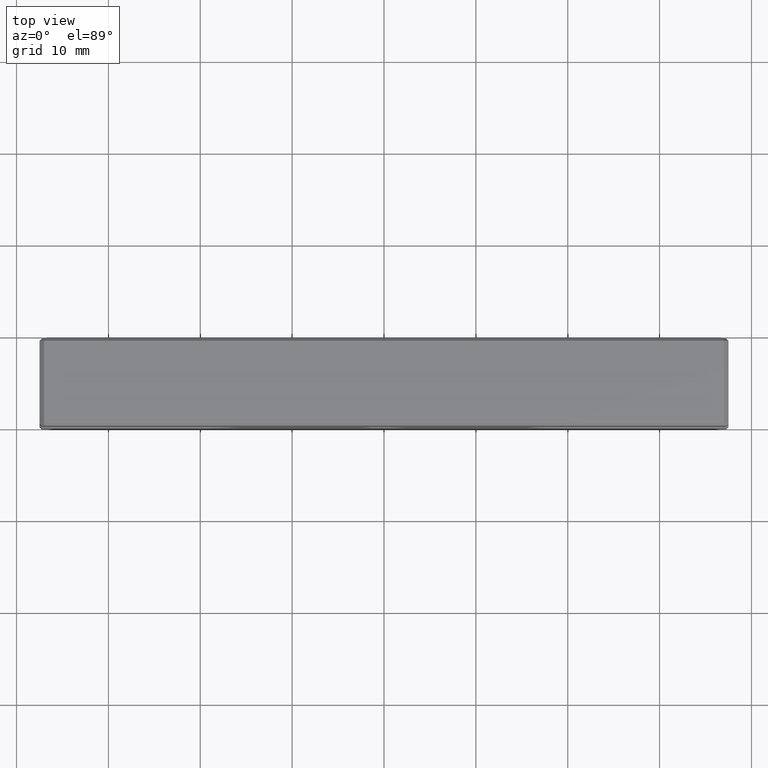
[diagram: clean part render]
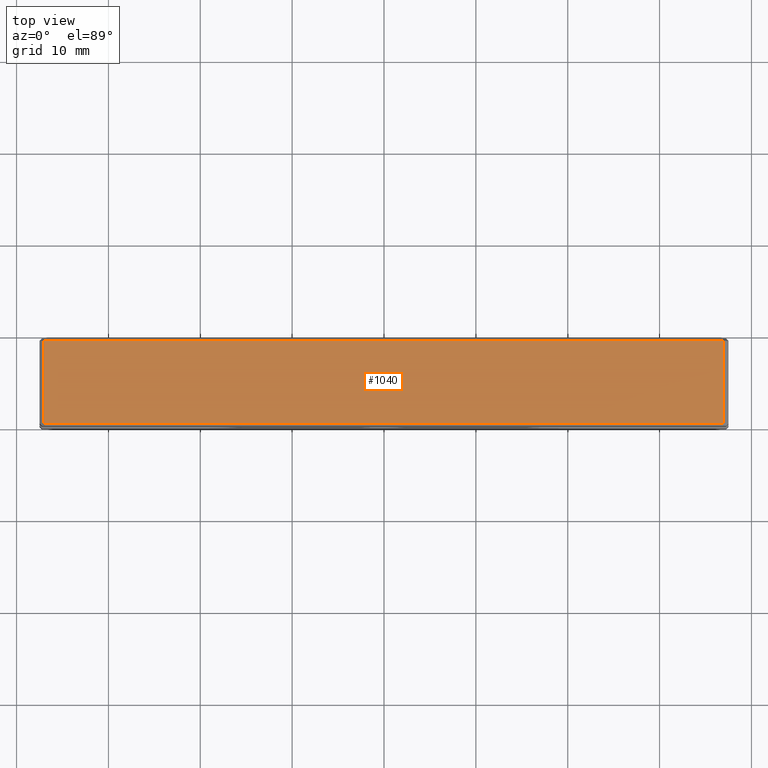
[diagram: same view with one face highlighted and labeled with its STEP entity id]
A machine part, top view. The second image highlights one B-rep face of the part: STEP entity #1040.
In plain terms, the highlighted planar face has unit normal (0, 0, -1).
Its self-contained STEP definition (entity closure, byte-faithful):
#18 = ORIENTED_EDGE ( 'NONE', *, *, #469, .T. ) ;
#29 = EDGE_CURVE ( 'NONE', #230, #90, #597, .T. ) ;
#38 = CARTESIAN_POINT ( 'NONE',  ( -36.99999999999999289, 9.250000000000000000, 12.49999999999999822 ) ) ;
#61 = CARTESIAN_POINT ( 'NONE',  ( -36.99999999999999289, 0.2500000000000071609, 12.49999999999999822 ) ) ;
#77 = DIRECTION ( 'NONE',  ( 0.000000000000000000, 0.000000000000000000, -1.000000000000000000 ) ) ;
#84 = PLANE ( 'NONE',  #1058 ) ;
#90 = VERTEX_POINT ( 'NONE', #38 ) ;
#194 = FACE_OUTER_BOUND ( 'NONE', #358, .T. ) ;
#216 = DIRECTION ( 'NONE',  ( 1.000000000000000000, 0.000000000000000000, 0.000000000000000000 ) ) ;
#230 = VERTEX_POINT ( 'NONE', #721 ) ;
#253 = LINE ( 'NONE', #323, #530 ) ;
#270 = DIRECTION ( 'NONE',  ( -1.000000000000000000, 0.000000000000000000, -0.000000000000000000 ) ) ;
#293 = EDGE_CURVE ( 'NONE', #90, #873, #1122, .T. ) ;
#323 = CARTESIAN_POINT ( 'NONE',  ( 36.99999999999999289, 9.500000000000000000, 12.49999999999999822 ) ) ;
#352 = ORIENTED_EDGE ( 'NONE', *, *, #293, .T. ) ;
#358 = EDGE_LOOP ( 'NONE', ( #352, #944, #18, #926 ) ) ;
#469 = EDGE_CURVE ( 'NONE', #678, #230, #253, .T. ) ;
#518 = CARTESIAN_POINT ( 'NONE',  ( -36.99999999999999289, 9.250000000000000000, 12.49999999999999822 ) ) ;
#530 = VECTOR ( 'NONE', #1068, 1000.000000000000000 ) ;
#542 = VECTOR ( 'NONE', #980, 1000.000000000000000 ) ;
#556 = CARTESIAN_POINT ( 'NONE',  ( -36.99999999999999289, 9.500000000000000000, 12.49999999999999822 ) ) ;
#597 = LINE ( 'NONE', #518, #542 ) ;
#678 = VERTEX_POINT ( 'NONE', #1034 ) ;
#689 = VECTOR ( 'NONE', #876, 1000.000000000000000 ) ;
#721 = CARTESIAN_POINT ( 'NONE',  ( 36.99999999999999289, 9.250000000000000000, 12.49999999999999822 ) ) ;
#865 = LINE ( 'NONE', #951, #1191 ) ;
#873 = VERTEX_POINT ( 'NONE', #61 ) ;
#876 = DIRECTION ( 'NONE',  ( 0.000000000000000000, -1.000000000000000000, 0.000000000000000000 ) ) ;
#926 = ORIENTED_EDGE ( 'NONE', *, *, #29, .T. ) ;
#944 = ORIENTED_EDGE ( 'NONE', *, *, #1200, .T. ) ;
#951 = CARTESIAN_POINT ( 'NONE',  ( -37.49999999999999289, 0.2500000000000071609, 12.49999999999999822 ) ) ;
#980 = DIRECTION ( 'NONE',  ( -1.000000000000000000, 0.000000000000000000, 0.000000000000000000 ) ) ;
#1000 = CARTESIAN_POINT ( 'NONE',  ( -37.49999999999999289, 9.500000000000000000, 12.49999999999999822 ) ) ;
#1034 = CARTESIAN_POINT ( 'NONE',  ( 36.99999999999999289, 0.2500000000000054401, 12.49999999999999822 ) ) ;
#1040 = ADVANCED_FACE ( 'NONE', ( #194 ), #84, .F. ) ;
#1058 = AXIS2_PLACEMENT_3D ( 'NONE', #1000, #77, #270 ) ;
#1068 = DIRECTION ( 'NONE',  ( 0.000000000000000000, 1.000000000000000000, 0.000000000000000000 ) ) ;
#1122 = LINE ( 'NONE', #556, #689 ) ;
#1191 = VECTOR ( 'NONE', #216, 1000.000000000000000 ) ;
#1200 = EDGE_CURVE ( 'NONE', #873, #678, #865, .T. ) ;